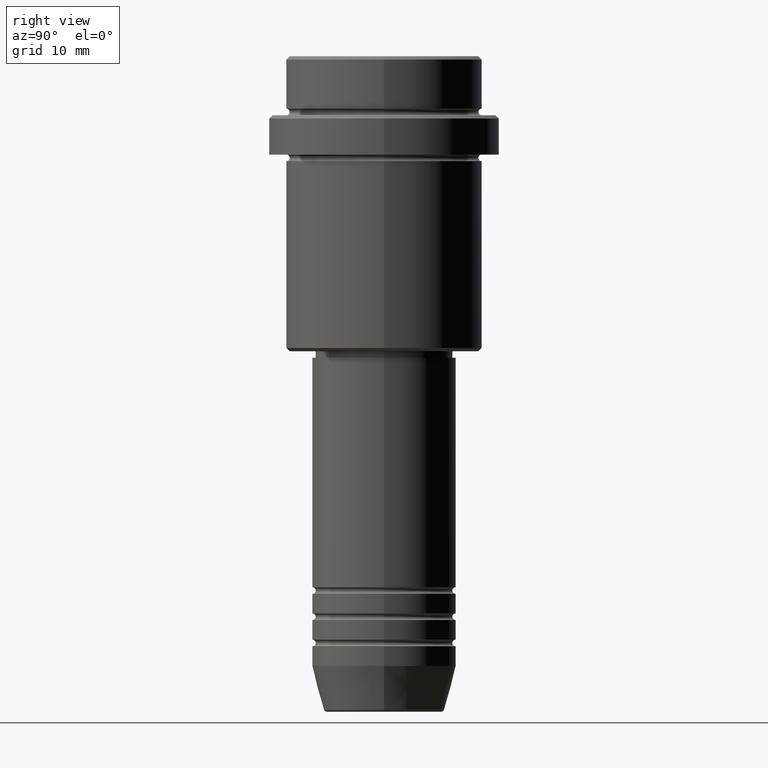
[diagram: clean part render]
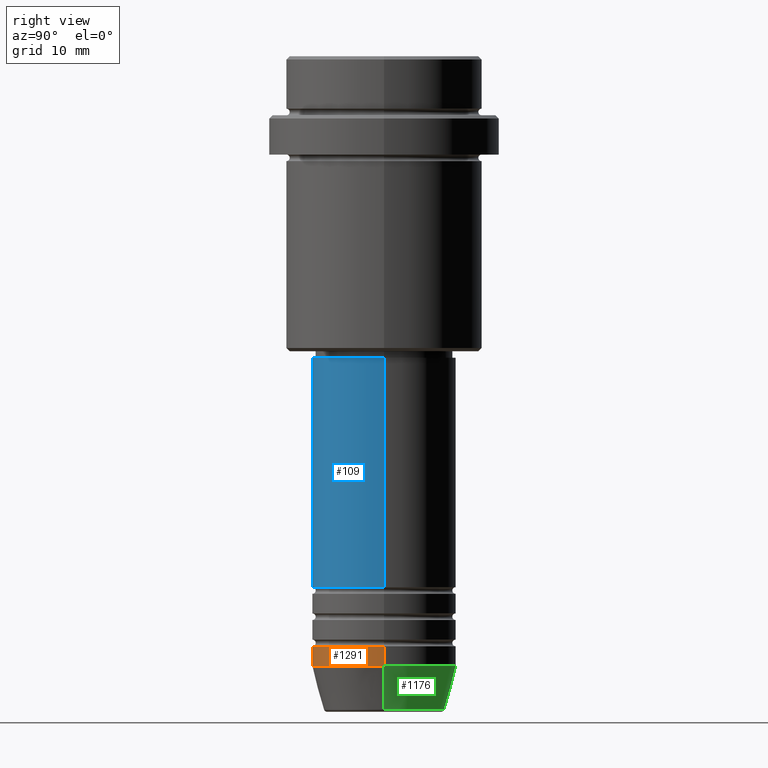
[diagram: same view with three faces highlighted in distinct colors, each labeled with its STEP entity id]
A machine part, right view with three faces highlighted in distinct colors.
Their STEP definitions:

[orange] entity #1291 — the highlighted cylindrical surface (partial cylindrical patch) has radius 11 mm, axis along (-0, -0, 1).
#17 = DIRECTION ( 'NONE',  ( -0.000000000000000000, -0.000000000000000000, 1.000000000000000000 ) ) ;
#27 = DIRECTION ( 'NONE',  ( -0.000000000000000000, -0.000000000000000000, 1.000000000000000000 ) ) ;
#35 = VERTEX_POINT ( 'NONE', #1039 ) ;
#42 = DIRECTION ( 'NONE',  ( -0.000000000000000000, -0.000000000000000000, 1.000000000000000000 ) ) ;
#72 = AXIS2_PLACEMENT_3D ( 'NONE', #1135, #42, #379 ) ;
#75 = VECTOR ( 'NONE', #17, 1000.000000000000000 ) ;
#181 = CARTESIAN_POINT ( 'NONE',  ( 0.000000000000000000, 0.000000000000000000, -90.00000000000000000 ) ) ;
#187 = DIRECTION ( 'NONE',  ( 1.000000000000000000, 0.000000000000000000, 0.000000000000000000 ) ) ;
#203 = DIRECTION ( 'NONE',  ( -0.000000000000000000, -0.000000000000000000, 1.000000000000000000 ) ) ;
#220 = AXIS2_PLACEMENT_3D ( 'NONE', #254, #27, #358 ) ;
#246 = CYLINDRICAL_SURFACE ( 'NONE', #220, 11.00000000000000000 ) ;
#254 = CARTESIAN_POINT ( 'NONE',  ( 0.000000000000000000, 0.000000000000000000, 0.000000000000000000 ) ) ;
#282 = DIRECTION ( 'NONE',  ( -0.000000000000000000, -0.000000000000000000, 1.000000000000000000 ) ) ;
#351 = EDGE_LOOP ( 'NONE', ( #686, #1009, #960, #1323 ) ) ;
#358 = DIRECTION ( 'NONE',  ( 1.000000000000000000, 0.000000000000000000, 0.000000000000000000 ) ) ;
#379 = DIRECTION ( 'NONE',  ( 1.000000000000000000, 0.000000000000000000, 0.000000000000000000 ) ) ;
#459 = VERTEX_POINT ( 'NONE', #663 ) ;
#476 = LINE ( 'NONE', #1257, #530 ) ;
#481 = EDGE_CURVE ( 'NONE', #567, #531, #476, .T. ) ;
#530 = VECTOR ( 'NONE', #282, 1000.000000000000000 ) ;
#531 = VERTEX_POINT ( 'NONE', #630 ) ;
#567 = VERTEX_POINT ( 'NONE', #1360 ) ;
#630 = CARTESIAN_POINT ( 'NONE',  ( 11.00000000000000000, 0.000000000000000000, -90.00000000000000000 ) ) ;
#663 = CARTESIAN_POINT ( 'NONE',  ( -11.00000000000000000, 1.347111479062088405E-15, -90.00000000000000000 ) ) ;
#686 = ORIENTED_EDGE ( 'NONE', *, *, #1395, .F. ) ;
#758 = CIRCLE ( 'NONE', #985, 11.00000000000000000 ) ;
#846 = EDGE_CURVE ( 'NONE', #35, #567, #965, .T. ) ;
#884 = LINE ( 'NONE', #999, #75 ) ;
#954 = EDGE_CURVE ( 'NONE', #459, #531, #758, .T. ) ;
#960 = ORIENTED_EDGE ( 'NONE', *, *, #481, .T. ) ;
#965 = CIRCLE ( 'NONE', #72, 11.00000000000000000 ) ;
#985 = AXIS2_PLACEMENT_3D ( 'NONE', #181, #203, #187 ) ;
#999 = CARTESIAN_POINT ( 'NONE',  ( -11.00000000000000000, 1.347111479062088405E-15, 0.000000000000000000 ) ) ;
#1008 = FACE_OUTER_BOUND ( 'NONE', #351, .T. ) ;
#1009 = ORIENTED_EDGE ( 'NONE', *, *, #846, .T. ) ;
#1039 = CARTESIAN_POINT ( 'NONE',  ( -11.00000000000000000, 1.347111479062088405E-15, -93.00000000000000000 ) ) ;
#1135 = CARTESIAN_POINT ( 'NONE',  ( 0.000000000000000000, 0.000000000000000000, -93.00000000000000000 ) ) ;
#1257 = CARTESIAN_POINT ( 'NONE',  ( 11.00000000000000000, 0.000000000000000000, 0.000000000000000000 ) ) ;
#1291 = ADVANCED_FACE ( 'NONE', ( #1008 ), #246, .T. ) ;
#1323 = ORIENTED_EDGE ( 'NONE', *, *, #954, .F. ) ;
#1360 = CARTESIAN_POINT ( 'NONE',  ( 11.00000000000000000, 0.000000000000000000, -93.00000000000000000 ) ) ;
#1395 = EDGE_CURVE ( 'NONE', #35, #459, #884, .T. ) ;

[blue] entity #109 — the highlighted cylindrical surface (partial cylindrical patch) has radius 11 mm, axis along (-0, -0, 1).
#16 = ORIENTED_EDGE ( 'NONE', *, *, #375, .T. ) ;
#50 = DIRECTION ( 'NONE',  ( -0.000000000000000000, -0.000000000000000000, 1.000000000000000000 ) ) ;
#54 = FACE_OUTER_BOUND ( 'NONE', #1199, .T. ) ;
#109 = ADVANCED_FACE ( 'NONE', ( #54 ), #1011, .T. ) ;
#124 = ORIENTED_EDGE ( 'NONE', *, *, #1048, .T. ) ;
#141 = AXIS2_PLACEMENT_3D ( 'NONE', #1283, #1049, #199 ) ;
#199 = DIRECTION ( 'NONE',  ( 1.000000000000000000, 0.000000000000000000, 0.000000000000000000 ) ) ;
#221 = CARTESIAN_POINT ( 'NONE',  ( 11.00000000000000000, 0.000000000000000000, -80.99999999999987210 ) ) ;
#262 = AXIS2_PLACEMENT_3D ( 'NONE', #601, #1130, #480 ) ;
#336 = ORIENTED_EDGE ( 'NONE', *, *, #565, .F. ) ;
#367 = CARTESIAN_POINT ( 'NONE',  ( 0.000000000000000000, 0.000000000000000000, 0.000000000000000000 ) ) ;
#375 = EDGE_CURVE ( 'NONE', #728, #1080, #912, .T. ) ;
#447 = VECTOR ( 'NONE', #1026, 1000.000000000000000 ) ;
#468 = DIRECTION ( 'NONE',  ( 1.000000000000000000, 0.000000000000000000, 0.000000000000000000 ) ) ;
#480 = DIRECTION ( 'NONE',  ( 1.000000000000000000, 0.000000000000000000, 0.000000000000000000 ) ) ;
#488 = DIRECTION ( 'NONE',  ( -0.000000000000000000, -0.000000000000000000, 1.000000000000000000 ) ) ;
#494 = CARTESIAN_POINT ( 'NONE',  ( 11.00000000000000000, 0.000000000000000000, 0.000000000000000000 ) ) ;
#565 = EDGE_CURVE ( 'NONE', #574, #1223, #1256, .T. ) ;
#574 = VERTEX_POINT ( 'NONE', #1400 ) ;
#585 = EDGE_CURVE ( 'NONE', #1223, #1080, #801, .T. ) ;
#601 = CARTESIAN_POINT ( 'NONE',  ( 0.000000000000000000, 0.000000000000000000, -45.99999999999997868 ) ) ;
#728 = VERTEX_POINT ( 'NONE', #221 ) ;
#732 = CARTESIAN_POINT ( 'NONE',  ( -11.00000000000000000, 1.347111479062088405E-15, 0.000000000000000000 ) ) ;
#735 = AXIS2_PLACEMENT_3D ( 'NONE', #367, #488, #468 ) ;
#764 = CARTESIAN_POINT ( 'NONE',  ( -10.99999999999999822, 1.347111479062088207E-15, -45.99999999999997868 ) ) ;
#801 = CIRCLE ( 'NONE', #262, 10.99999999999999822 ) ;
#912 = LINE ( 'NONE', #494, #1416 ) ;
#1011 = CYLINDRICAL_SURFACE ( 'NONE', #735, 11.00000000000000000 ) ;
#1026 = DIRECTION ( 'NONE',  ( -0.000000000000000000, -0.000000000000000000, 1.000000000000000000 ) ) ;
#1048 = EDGE_CURVE ( 'NONE', #574, #728, #1376, .T. ) ;
#1049 = DIRECTION ( 'NONE',  ( -0.000000000000000000, -0.000000000000000000, 1.000000000000000000 ) ) ;
#1080 = VERTEX_POINT ( 'NONE', #1271 ) ;
#1130 = DIRECTION ( 'NONE',  ( -0.000000000000000000, -0.000000000000000000, 1.000000000000000000 ) ) ;
#1199 = EDGE_LOOP ( 'NONE', ( #336, #124, #16, #1414 ) ) ;
#1223 = VERTEX_POINT ( 'NONE', #764 ) ;
#1256 = LINE ( 'NONE', #732, #447 ) ;
#1271 = CARTESIAN_POINT ( 'NONE',  ( 10.99999999999999822, 0.000000000000000000, -45.99999999999997868 ) ) ;
#1283 = CARTESIAN_POINT ( 'NONE',  ( 0.000000000000000000, 0.000000000000000000, -80.99999999999987210 ) ) ;
#1376 = CIRCLE ( 'NONE', #141, 11.00000000000000000 ) ;
#1400 = CARTESIAN_POINT ( 'NONE',  ( -11.00000000000000000, 1.347111479062088405E-15, -80.99999999999987210 ) ) ;
#1414 = ORIENTED_EDGE ( 'NONE', *, *, #585, .F. ) ;
#1416 = VECTOR ( 'NONE', #50, 1000.000000000000000 ) ;

[green] entity #1176 — the highlighted conical surface has half-angle 15 deg.
#14 = ORIENTED_EDGE ( 'NONE', *, *, #541, .F. ) ;
#35 = VERTEX_POINT ( 'NONE', #1039 ) ;
#112 = DIRECTION ( 'NONE',  ( 1.000000000000000000, 0.000000000000000000, 0.000000000000000000 ) ) ;
#255 = CARTESIAN_POINT ( 'NONE',  ( -9.223655072137187716, 1.238341722557647004E-15, -99.62940952255125637 ) ) ;
#357 = VECTOR ( 'NONE', #1299, 1000.000000000000000 ) ;
#387 = LINE ( 'NONE', #487, #572 ) ;
#395 = EDGE_CURVE ( 'NONE', #1016, #567, #998, .T. ) ;
#400 = CIRCLE ( 'NONE', #1188, 11.00000000000000000 ) ;
#403 = ORIENTED_EDGE ( 'NONE', *, *, #871, .T. ) ;
#467 = DIRECTION ( 'NONE',  ( -0.000000000000000000, -0.000000000000000000, 1.000000000000000000 ) ) ;
#478 = DIRECTION ( 'NONE',  ( 1.000000000000000000, 0.000000000000000000, 0.000000000000000000 ) ) ;
#487 = CARTESIAN_POINT ( 'NONE',  ( -11.00000000000000000, 1.347111479062088405E-15, -93.00000000000000000 ) ) ;
#490 = AXIS2_PLACEMENT_3D ( 'NONE', #536, #527, #112 ) ;
#527 = DIRECTION ( 'NONE',  ( -0.000000000000000000, -0.000000000000000000, 1.000000000000000000 ) ) ;
#536 = CARTESIAN_POINT ( 'NONE',  ( 0.000000000000000000, 0.000000000000000000, -93.00000000000000000 ) ) ;
#541 = EDGE_CURVE ( 'NONE', #567, #35, #400, .T. ) ;
#567 = VERTEX_POINT ( 'NONE', #1360 ) ;
#572 = VECTOR ( 'NONE', #1231, 1000.000000000000000 ) ;
#713 = CIRCLE ( 'NONE', #1267, 9.223655072137187716 ) ;
#750 = EDGE_LOOP ( 'NONE', ( #984, #403, #14, #1133 ) ) ;
#820 = CARTESIAN_POINT ( 'NONE',  ( 9.223655072137187716, 0.000000000000000000, -99.62940952255125637 ) ) ;
#871 = EDGE_CURVE ( 'NONE', #899, #35, #387, .T. ) ;
#880 = EDGE_CURVE ( 'NONE', #1016, #899, #713, .T. ) ;
#892 = CARTESIAN_POINT ( 'NONE',  ( 11.00000000000000000, 0.000000000000000000, -93.00000000000000000 ) ) ;
#899 = VERTEX_POINT ( 'NONE', #255 ) ;
#984 = ORIENTED_EDGE ( 'NONE', *, *, #880, .T. ) ;
#998 = LINE ( 'NONE', #892, #357 ) ;
#1001 = CARTESIAN_POINT ( 'NONE',  ( 0.000000000000000000, 0.000000000000000000, -99.62940952255125637 ) ) ;
#1016 = VERTEX_POINT ( 'NONE', #820 ) ;
#1039 = CARTESIAN_POINT ( 'NONE',  ( -11.00000000000000000, 1.347111479062088405E-15, -93.00000000000000000 ) ) ;
#1058 = CONICAL_SURFACE ( 'NONE', #490, 11.00000000000000000, 0.2617993877991500740 ) ;
#1072 = DIRECTION ( 'NONE',  ( 1.000000000000000000, 0.000000000000000000, 0.000000000000000000 ) ) ;
#1133 = ORIENTED_EDGE ( 'NONE', *, *, #395, .F. ) ;
#1142 = DIRECTION ( 'NONE',  ( -0.000000000000000000, -0.000000000000000000, 1.000000000000000000 ) ) ;
#1176 = ADVANCED_FACE ( 'NONE', ( #1410 ), #1058, .T. ) ;
#1188 = AXIS2_PLACEMENT_3D ( 'NONE', #1265, #1142, #1072 ) ;
#1231 = DIRECTION ( 'NONE',  ( -0.2588190451025213501, 3.169619151431772337E-17, 0.9659258262890680902 ) ) ;
#1265 = CARTESIAN_POINT ( 'NONE',  ( 0.000000000000000000, 0.000000000000000000, -93.00000000000000000 ) ) ;
#1267 = AXIS2_PLACEMENT_3D ( 'NONE', #1001, #467, #478 ) ;
#1299 = DIRECTION ( 'NONE',  ( 0.2588190451025213501, 0.000000000000000000, 0.9659258262890680902 ) ) ;
#1360 = CARTESIAN_POINT ( 'NONE',  ( 11.00000000000000000, 0.000000000000000000, -93.00000000000000000 ) ) ;
#1410 = FACE_OUTER_BOUND ( 'NONE', #750, .T. ) ;